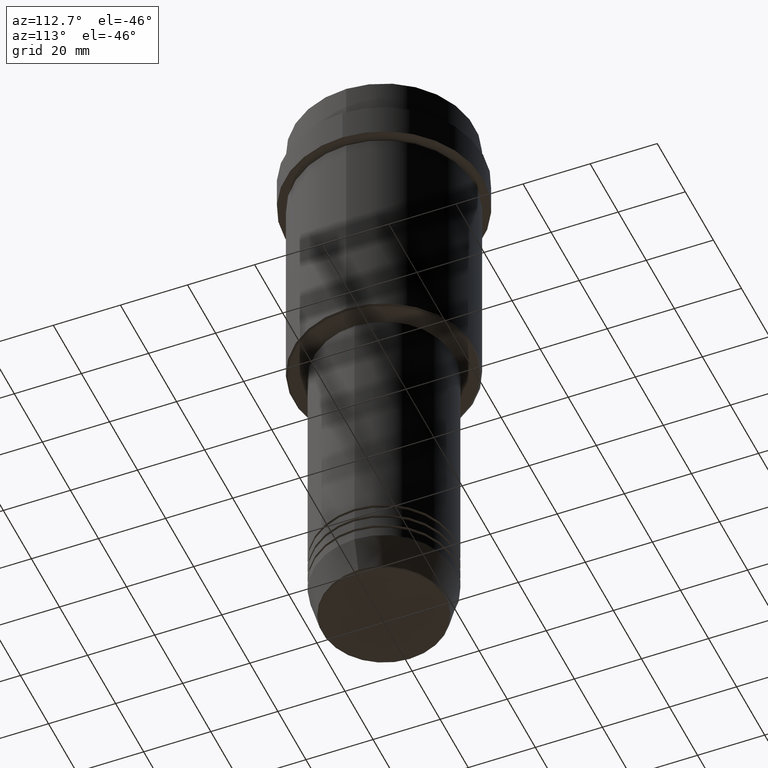
[diagram: clean part render]
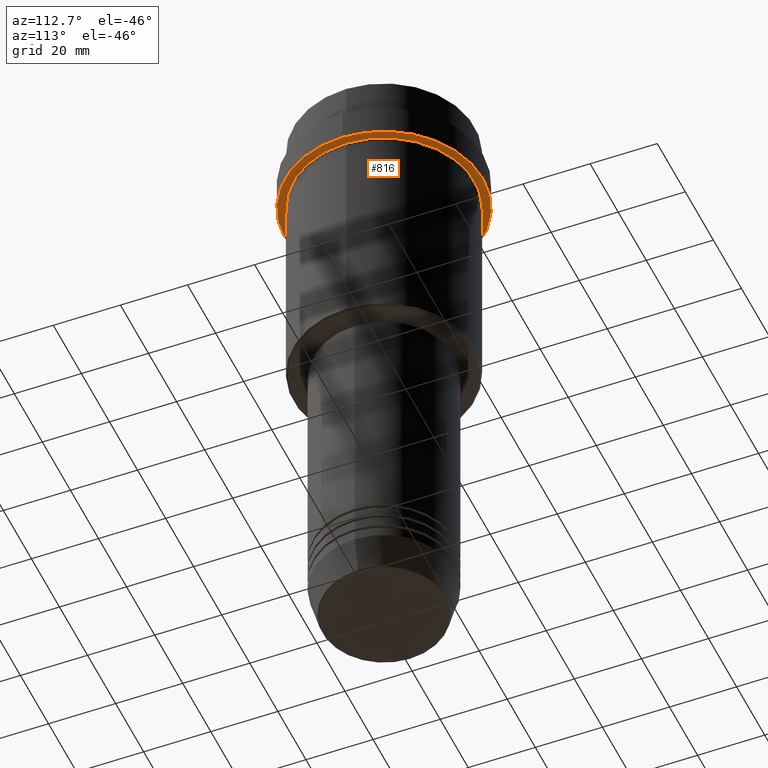
[diagram: same view with one face highlighted and labeled with its STEP entity id]
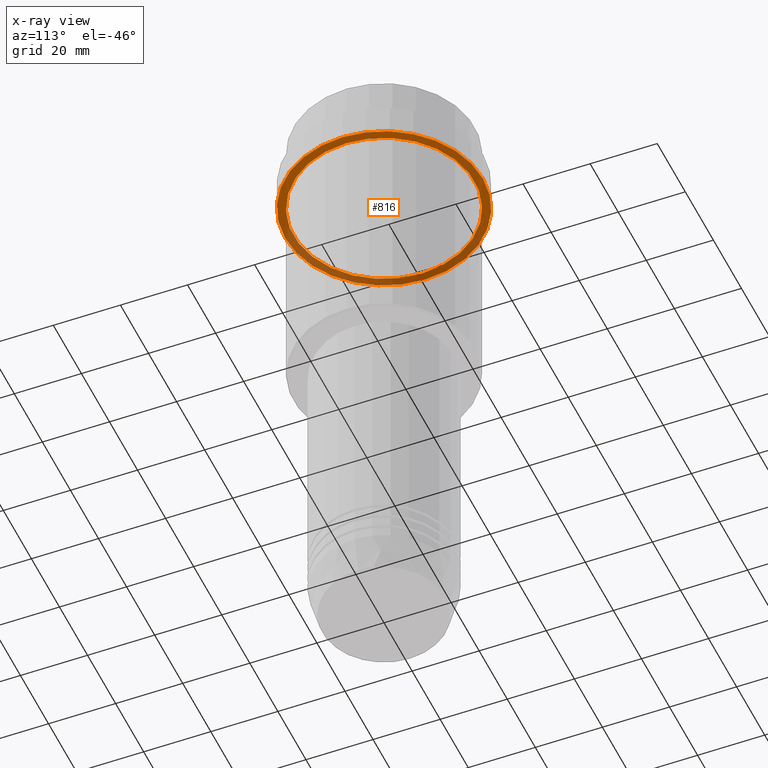
[diagram: x-ray of the same camera — body ghosted, the highlighted face saturated]
A machine part, auxiliary view. The second image highlights one B-rep face of the part: STEP entity #816.
The next image is the same camera in x-ray: the body ghosted, the highlighted face saturated — about 39% of this face is hidden behind the body in this view.
In plain terms, the highlighted planar face has unit normal (0, 0, -1).
Its self-contained STEP definition (entity closure, byte-faithful):
#66 = ORIENTED_EDGE ( 'NONE', *, *, #736, .T. ) ;
#78 = PLANE ( 'NONE',  #1288 ) ;
#80 = CIRCLE ( 'NONE', #440, 29.49999999999999645 ) ;
#156 = CARTESIAN_POINT ( 'NONE',  ( -29.49999999999999645, 3.612708057484690815E-15, -21.99999999999999289 ) ) ;
#171 = CARTESIAN_POINT ( 'NONE',  ( 0.000000000000000000, 0.000000000000000000, -21.99999999999999289 ) ) ;
#211 = ORIENTED_EDGE ( 'NONE', *, *, #1115, .F. ) ;
#284 = CIRCLE ( 'NONE', #438, 26.99999999999999645 ) ;
#330 = FACE_BOUND ( 'NONE', #770, .T. ) ;
#373 = CIRCLE ( 'NONE', #487, 29.49999999999999645 ) ;
#438 = AXIS2_PLACEMENT_3D ( 'NONE', #916, #1353, #491 ) ;
#439 = VERTEX_POINT ( 'NONE', #1064 ) ;
#440 = AXIS2_PLACEMENT_3D ( 'NONE', #1224, #1107, #682 ) ;
#452 = CARTESIAN_POINT ( 'NONE',  ( 26.99999999999999645, 3.306546357697853339E-15, -21.99999999999999289 ) ) ;
#487 = AXIS2_PLACEMENT_3D ( 'NONE', #171, #716, #602 ) ;
#491 = DIRECTION ( 'NONE',  ( -1.000000000000000000, 0.000000000000000000, 0.000000000000000000 ) ) ;
#512 = CARTESIAN_POINT ( 'NONE',  ( 0.000000000000000000, 0.000000000000000000, -21.99999999999999289 ) ) ;
#526 = VERTEX_POINT ( 'NONE', #1121 ) ;
#602 = DIRECTION ( 'NONE',  ( 1.000000000000000000, 0.000000000000000000, 0.000000000000000000 ) ) ;
#641 = VERTEX_POINT ( 'NONE', #452 ) ;
#682 = DIRECTION ( 'NONE',  ( 1.000000000000000000, 0.000000000000000000, 0.000000000000000000 ) ) ;
#716 = DIRECTION ( 'NONE',  ( -0.000000000000000000, -0.000000000000000000, 1.000000000000000000 ) ) ;
#736 = EDGE_CURVE ( 'NONE', #526, #641, #284, .T. ) ;
#741 = EDGE_LOOP ( 'NONE', ( #779, #211 ) ) ;
#770 = EDGE_LOOP ( 'NONE', ( #66, #1073 ) ) ;
#779 = ORIENTED_EDGE ( 'NONE', *, *, #1012, .F. ) ;
#788 = AXIS2_PLACEMENT_3D ( 'NONE', #512, #1284, #1308 ) ;
#801 = EDGE_CURVE ( 'NONE', #641, #526, #1357, .T. ) ;
#816 = ADVANCED_FACE ( 'NONE', ( #330, #1299 ), #78, .T. ) ;
#840 = DIRECTION ( 'NONE',  ( -1.000000000000000000, 0.000000000000000000, -0.000000000000000000 ) ) ;
#916 = CARTESIAN_POINT ( 'NONE',  ( 0.000000000000000000, 0.000000000000000000, -21.99999999999999289 ) ) ;
#1012 = EDGE_CURVE ( 'NONE', #439, #1133, #80, .T. ) ;
#1064 = CARTESIAN_POINT ( 'NONE',  ( 29.49999999999999645, 0.000000000000000000, -21.99999999999999289 ) ) ;
#1073 = ORIENTED_EDGE ( 'NONE', *, *, #801, .T. ) ;
#1107 = DIRECTION ( 'NONE',  ( -0.000000000000000000, -0.000000000000000000, 1.000000000000000000 ) ) ;
#1115 = EDGE_CURVE ( 'NONE', #1133, #439, #373, .T. ) ;
#1121 = CARTESIAN_POINT ( 'NONE',  ( -26.99999999999999645, 0.000000000000000000, -21.99999999999999289 ) ) ;
#1133 = VERTEX_POINT ( 'NONE', #156 ) ;
#1224 = CARTESIAN_POINT ( 'NONE',  ( 0.000000000000000000, 0.000000000000000000, -21.99999999999999289 ) ) ;
#1284 = DIRECTION ( 'NONE',  ( -0.000000000000000000, -0.000000000000000000, 1.000000000000000000 ) ) ;
#1288 = AXIS2_PLACEMENT_3D ( 'NONE', #1407, #1295, #840 ) ;
#1295 = DIRECTION ( 'NONE',  ( 0.000000000000000000, 0.000000000000000000, -1.000000000000000000 ) ) ;
#1299 = FACE_OUTER_BOUND ( 'NONE', #741, .T. ) ;
#1308 = DIRECTION ( 'NONE',  ( -1.000000000000000000, 0.000000000000000000, 0.000000000000000000 ) ) ;
#1353 = DIRECTION ( 'NONE',  ( -0.000000000000000000, -0.000000000000000000, 1.000000000000000000 ) ) ;
#1357 = CIRCLE ( 'NONE', #788, 26.99999999999999645 ) ;
#1407 = CARTESIAN_POINT ( 'NONE',  ( 0.000000000000000000, 29.49999999999999645, -21.99999999999999289 ) ) ;